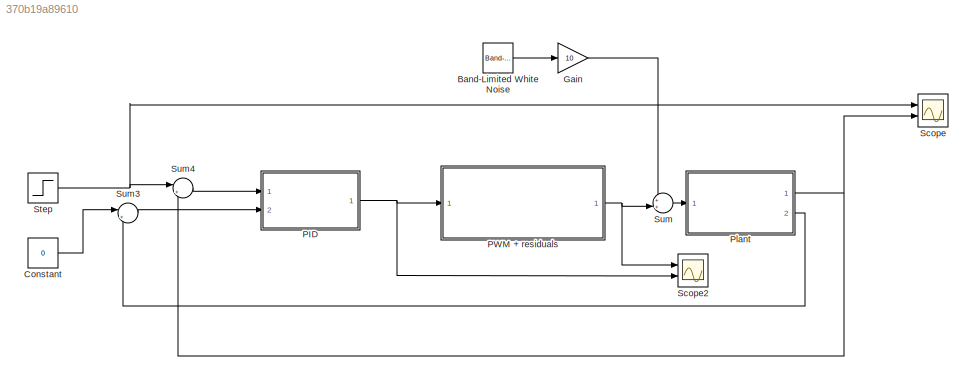
MODEL slx_370b19a89610
KIND model
CONFIG AbsTol = auto
CONFIG EnableMultiTasking = off
CONFIG FixedStep = auto
CONFIG MaxStep = 1e-3
CONFIG MinStep = auto
CONFIG RelTol = 1e-3
CONFIG SampleTimeConstraint = Unconstrained
CONFIG SolverName = VariableStepAuto
CONFIG StartTime = 0.0
CONFIG StopTime = 60
BLOCK [Reference] Band-Limited White Noise  REF=simulink/Sources/Band-Limited
White Noise
  Ports = [0, 1]
  SourceBlock = simulink/Sources/Band-Limited\nWhite Noise
  SourceProductBaseCode = SL
  SourceType = Band-Limited White Noise.
BLOCK [Constant] Constant
  Value = 0
BLOCK [Gain] Gain
  Gain = 10
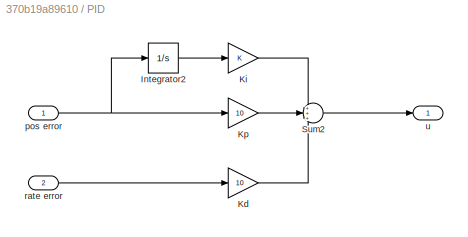
BLOCK [SubSystem] PID
  Ports = [2, 1]
  RequestExecContextInheritance = off
BLOCK [Integrator] PID/Integrator2
  Ports = [1, 1]
BLOCK [Gain] PID/Kd
  Gain = 10
BLOCK [Gain] PID/Ki
BLOCK [Gain] PID/Kp
  Gain = 10
BLOCK [Sum] PID/Sum2
  Inputs = +++
  Ports = [3, 1]
BLOCK [Inport] PID/pos error
BLOCK [Inport] PID/rate error
  Port = 2
BLOCK [Outport] PID/u
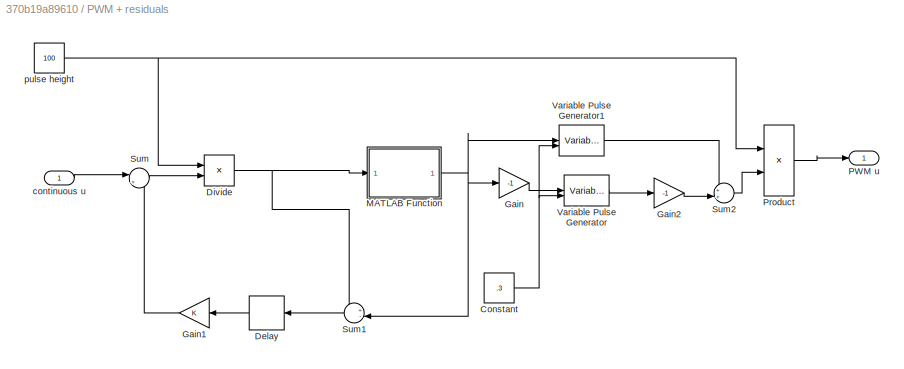
BLOCK [SubSystem] PWM + residuals
  Ports = [1, 1]
  RequestExecContextInheritance = off
BLOCK [Constant] PWM + residuals/Constant
  Value = .3
BLOCK [Delay] PWM + residuals/Delay
  DelayLength = 1
  InputPortMap = u0
  NameLocation = top
  Ports = [1, 1]
BLOCK [Product] PWM + residuals/Divide
  Inputs = /*
  Ports = [2, 1]
BLOCK [Gain] PWM + residuals/Gain
  Gain = -1
BLOCK [Gain] PWM + residuals/Gain1
  NameLocation = top
BLOCK [Gain] PWM + residuals/Gain2
  Gain = -1
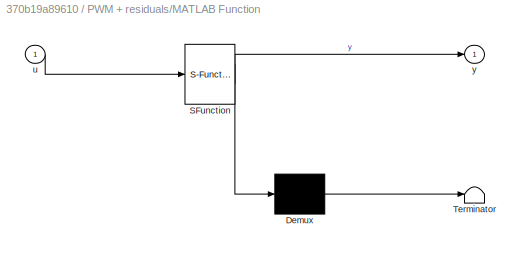
BLOCK [SubSystem] PWM + residuals/MATLAB Function
  ErrorFcn = Stateflow.Translate.translate
  PermitHierarchicalResolution = ExplicitOnly
  Ports = [1, 1]
  RequestExecContextInheritance = off
  SFBlockType = MATLAB Function
  TreatAsAtomicUnit = on
BLOCK [Demux] PWM + residuals/MATLAB Function/ Demux 
  Outputs = 1
  Ports = [1, 1]
BLOCK [S-Function] PWM + residuals/MATLAB Function/ SFunction 
  EnableBusSupport = on
  FunctionName = sf_sfun
  PortCounts = [1 2]
  Ports = [1, 2]
  SFcnIsStateOwnerBlock = off
  SFunctionDeploymentMode = off
  Tag = Stateflow S-Function 1
BLOCK [Terminator] PWM + residuals/MATLAB Function/ Terminator 
BLOCK [Inport] PWM + residuals/MATLAB Function/u
BLOCK [Outport] PWM + residuals/MATLAB Function/y
BLOCK [Outport] PWM + residuals/PWM u
BLOCK [Product] PWM + residuals/Product
  Ports = [2, 1]
BLOCK [Sum] PWM + residuals/Sum
  Inputs = |++
  Ports = [2, 1]
BLOCK [Sum] PWM + residuals/Sum1
  Inputs = +-|
  NameLocation = top
  Ports = [2, 1]
BLOCK [Sum] PWM + residuals/Sum2
  Inputs = ++|
  Ports = [2, 1]
BLOCK [VariablePulseGenerator] PWM + residuals/Variable Pulse Generator
  AllowZeroPulseWidth = on
  SampleTime = 0.1
BLOCK [VariablePulseGenerator] PWM + residuals/Variable Pulse Generator1
  AllowZeroPulseWidth = on
  SampleTime = 0.1
BLOCK [Inport] PWM + residuals/continuous u
BLOCK [Constant] PWM + residuals/pulse height
  Value = 100
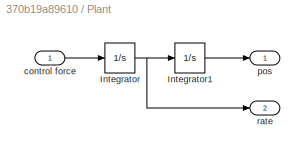
BLOCK [SubSystem] Plant
  Ports = [1, 2]
  RequestExecContextInheritance = off
BLOCK [Integrator] Plant/Integrator
  Ports = [1, 1]
BLOCK [Integrator] Plant/Integrator1
  Ports = [1, 1]
BLOCK [Inport] Plant/control force
BLOCK [Outport] Plant/pos
BLOCK [Outport] Plant/rate
  Port = 2
BLOCK [Scope] Scope
  Floating = off
  NumInputPorts = 2
  Ports = [2]
  ScopeSpecificationString = Simulink.scopes.TimeScopeBlockCfg('CurrentConfiguration', extmgr.ConfigurationSet(extmgr.Configuration('Core','General UI',true),extmgr.Configuration('Core','Source UI',true),extmgr.Configuration('Sources','WiredSimulink',true),extmgr.Configuration('Visuals','Time Domain',true,'SerializedDisplays',{struct('MinYLimReal','-5.42554','MaxYLimReal','16.10304','YLabelReal','','MinYLimMag','0.00000','Max...<+1386ch>
BLOCK [Scope] Scope2
  Floating = off
  NumInputPorts = 2
  Ports = [2]
  ScopeSpecificationString = Simulink.scopes.TimeScopeBlockCfg('CurrentConfiguration', extmgr.ConfigurationSet(extmgr.Configuration('Core','General UI',true),extmgr.Configuration('Core','Source UI',true),extmgr.Configuration('Sources','WiredSimulink',true,'DataLoggingVariableName','ScopeData2'),extmgr.Configuration('Visuals','Time Domain',true,'SerializedDisplays',{struct('MinYLimReal','-407.90968','MaxYLimReal','358.20852','...<+1464ch>
BLOCK [Step] Step
  After = 10
  SampleTime = 0
  Time = 20
BLOCK [Sum] Sum
  Inputs = ++|
  Ports = [2, 1]
BLOCK [Sum] Sum3
  Inputs = |+-
  Ports = [2, 1]
BLOCK [Sum] Sum4
  Inputs = |+-
  Ports = [2, 1]
LINE Band-Limited White Noise:1 -> Gain:1
LINE Constant:1 -> Sum3:1
LINE Gain:1 -> Sum:1
LINE PID/Integrator2:1 -> PID/Ki:1
LINE PID/Kd:1 -> PID/Sum2:3
LINE PID/Ki:1 -> PID/Sum2:1
LINE PID/Kp:1 -> PID/Sum2:2
LINE PID/Sum2:1 -> PID/u:1
NET PID/pos error:1 -> PID/Integrator2:1, PID/Kp:1
LINE PID/rate error:1 -> PID/Kd:1
NET PID:1 -> PWM + residuals:1, Scope2:2
NET PWM + residuals/Constant:1 -> PWM + residuals/Variable Pulse Generator1:2, PWM + residuals/Variable Pulse Generator:2
LINE PWM + residuals/Delay:1 -> PWM + residuals/Gain1:1
NET PWM + residuals/Divide:1 -> PWM + residuals/MATLAB Function:1, PWM + residuals/Sum1:1
LINE PWM + residuals/Gain1:1 -> PWM + residuals/Sum:2
LINE PWM + residuals/Gain2:1 -> PWM + residuals/Sum2:2
LINE PWM + residuals/Gain:1 -> PWM + residuals/Variable Pulse Generator:1
NET PWM + residuals/MATLAB Function:1 -> PWM + residuals/Gain:1, PWM + residuals/Sum1:2, PWM + residuals/Variable Pulse Generator1:1
LINE PWM + residuals/Product:1 -> PWM + residuals/PWM u:1
LINE PWM + residuals/Sum1:1 -> PWM + residuals/Delay:1
LINE PWM + residuals/Sum2:1 -> PWM + residuals/Product:2
LINE PWM + residuals/Sum:1 -> PWM + residuals/Divide:2
LINE PWM + residuals/Variable Pulse Generator1:1 -> PWM + residuals/Sum2:1
LINE PWM + residuals/Variable Pulse Generator:1 -> PWM + residuals/Gain2:1
LINE PWM + residuals/continuous u:1 -> PWM + residuals/Sum:1
NET PWM + residuals/pulse height:1 -> PWM + residuals/Divide:1, PWM + residuals/Product:1
NET PWM + residuals:1 -> Scope2:1, Sum:2
LINE Plant/Integrator1:1 -> Plant/pos:1
NET Plant/Integrator:1 -> Plant/Integrator1:1, Plant/rate:1
LINE Plant/control force:1 -> Plant/Integrator:1
NET Plant:1 -> Scope:2, Sum4:2
LINE Plant:2 -> Sum3:2
NET Step:1 -> Scope:1, Sum4:1
LINE Sum3:1 -> PID:2
LINE Sum4:1 -> PID:1
LINE Sum:1 -> Plant:1
note: NET lines group one-source signal fan-out (src -> all destinations, sorted); 1:1 wires keep LINE
CHART PWM + residuals/MATLAB Function states=1 transitions=1
  STATE_LABEL 'eML_blk_kernel()'
  STATE_LABEL 'SCRIPT:\nfunction y = fcn(u)\n\n    d1 = .1;\n    d2 = .5;\n    \n    if u < -d2\n        y = -d2;\n    elseif u < -d1\n        y = u;\n    elseif u < d1\n        y = 0;\n    elseif u < d2\n        y = u;\n    else\n        y = d2;\n    end\n\nend\n\n'
CHART  states=0 transitions=0
